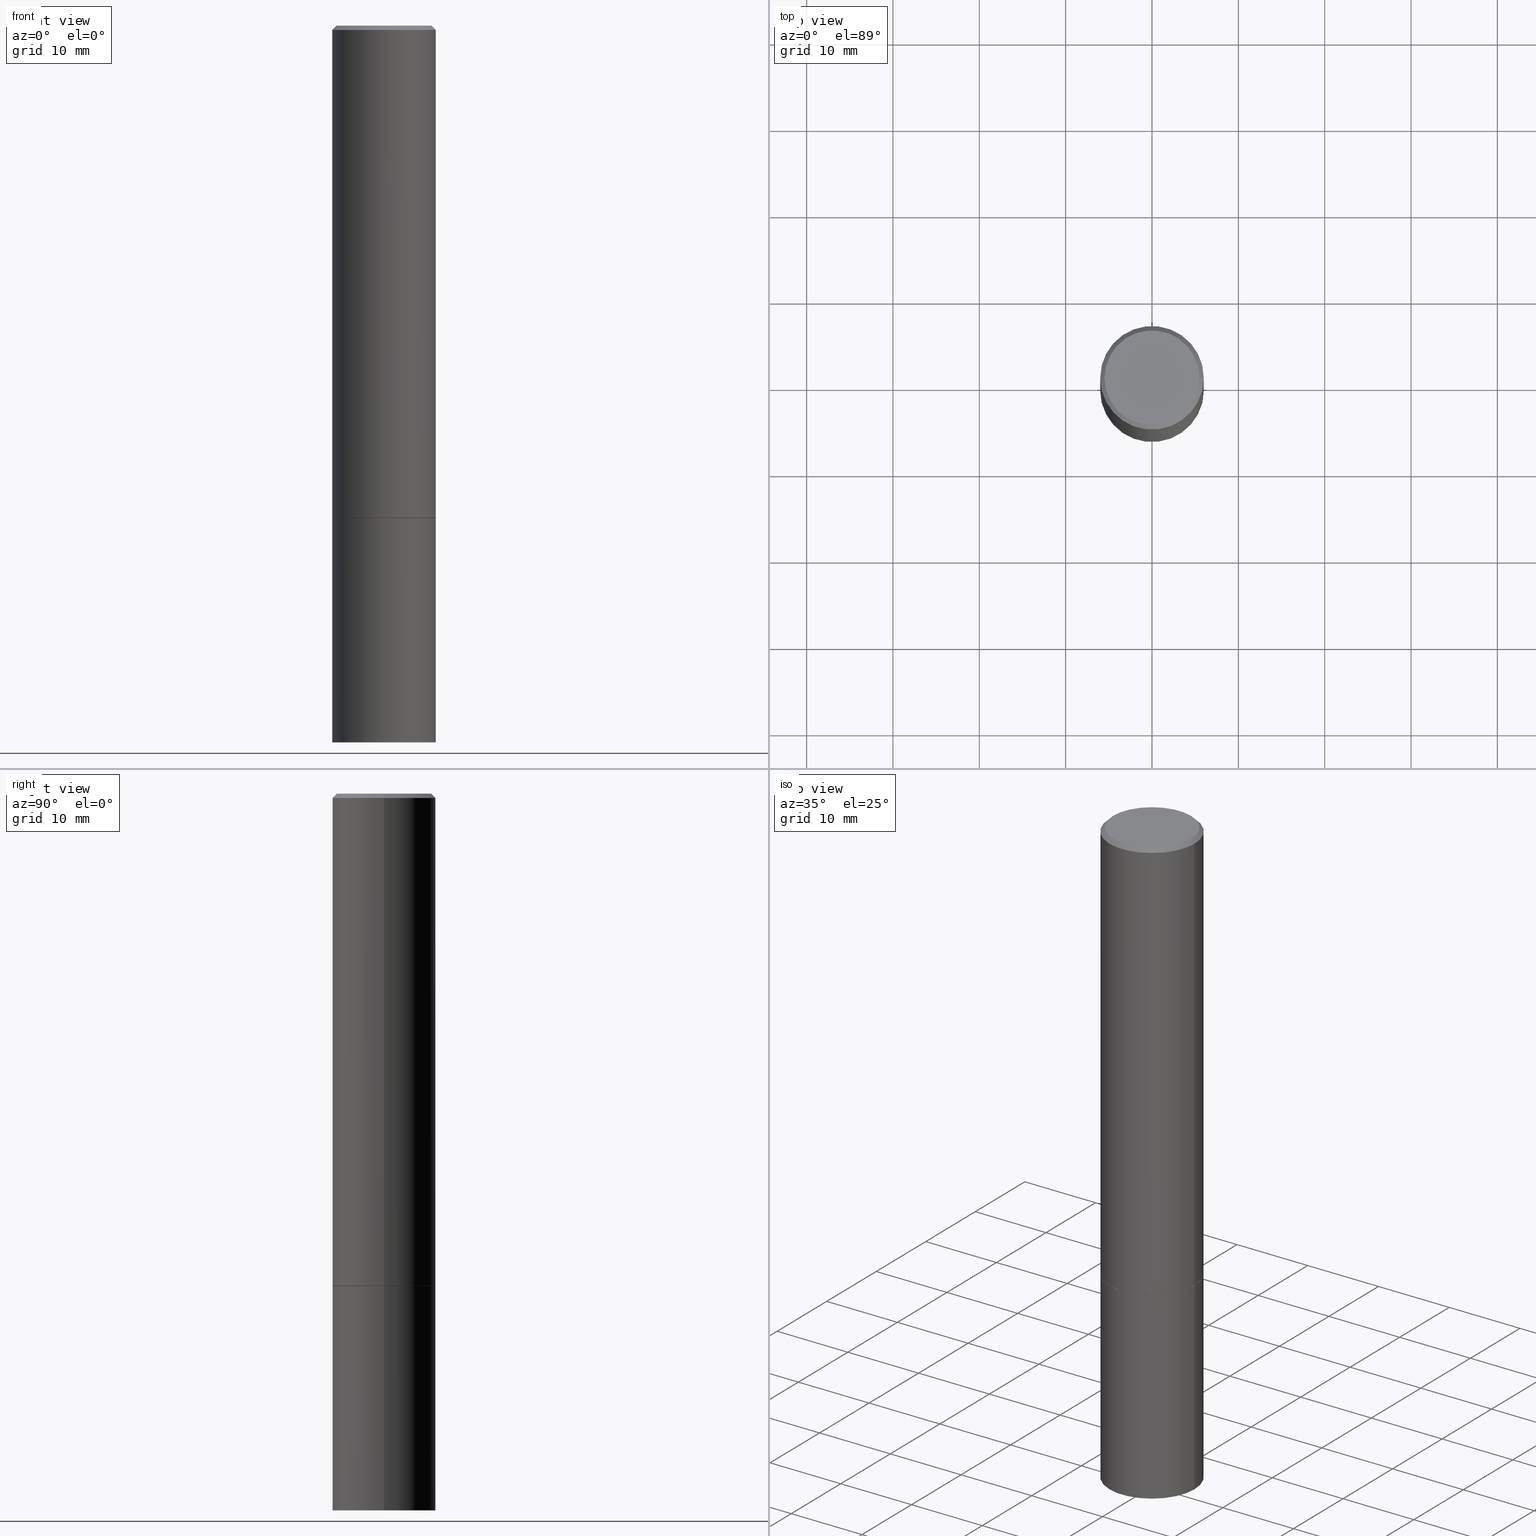
[diagram: canonical four-view strip — front | top / right | iso, engineering-drawing reading convention]
A machine part, canonical four-view strip (front | top / right | iso — engineering-drawing reading convention). The complete STEP part file that produces these views, byte-faithful:
ISO-10303-21;
HEADER;
FILE_DESCRIPTION (( 'STEP AP203' ),
    '1' );
FILE_NAME ('46623.STEP',
    '2024-02-28T11:01:52',
    ( '' ),
    ( '' ),
    'SwSTEP 2.0',
    'SolidWorks 2023',
    '' );
FILE_SCHEMA (( 'CONFIG_CONTROL_DESIGN' ));
ENDSEC;

DATA;
#1 = EDGE_CURVE ( 'NONE', #11, #229, #306, .T. ) ;
#2 = DIRECTION ( 'NONE',  ( 2.445468806185136597E-29, -3.491481338843145583E-15, -1.000000000000000000 ) ) ;
#3 = ORIENTED_EDGE ( 'NONE', *, *, #104, .T. ) ;
#4 = CC_DESIGN_APPROVAL ( #172, ( #170 ) ) ;
#5 = LINE ( 'NONE', #202, #313 ) ;
#6 = CARTESIAN_POINT ( 'NONE',  ( 5.485431079153880270E-29, -7.831741791159060910E-15, -2.243100000000000094 ) ) ;
#7 = DIRECTION ( 'NONE',  ( 0.7071067811865467956, -7.319954787623254468E-15, -0.7071067811865482389 ) ) ;
#8 = PERSON ( 'UNSPECIFIED', 'UNSPECIFIED', 'UNSPECIFIED', ('UNSPECIFIED'), ('UNSPECIFIED'), ('UNSPECIFIED') ) ;
#9 = ORIENTED_EDGE ( 'NONE', *, *, #1, .F. ) ;
#10 = EDGE_CURVE ( 'NONE', #66, #284, #54, .T. ) ;
#11 = VERTEX_POINT ( 'NONE', #192 ) ;
#12 = ORIENTED_EDGE ( 'NONE', *, *, #260, .T. ) ;
#13 = COORDINATED_UNIVERSAL_TIME_OFFSET ( 5, 0, .BEHIND. ) ;
#14 = ORIENTED_EDGE ( 'NONE', *, *, #1, .T. ) ;
#15 = AXIS2_PLACEMENT_3D ( 'NONE', #128, #245, #240 ) ;
#16 = LOCAL_TIME ( 6, 1, 52.00000000000000000, #119 ) ;
#17 = ORGANIZATION ( 'UNSPECIFIED', 'UNSPECIFIED', '' ) ;
#18 = DATE_TIME_ROLE ( 'classification_date' ) ;
#19 = DIRECTION ( 'NONE',  ( -2.445468806185136597E-29, 3.491481338843145583E-15, 1.000000000000000000 ) ) ;
#20 = AXIS2_PLACEMENT_3D ( 'NONE', #321, #90, #350 ) ;
#21 = EDGE_CURVE ( 'NONE', #198, #120, #329, .T. ) ;
#22 = EDGE_CURVE ( 'NONE', #198, #351, #141, .T. ) ;
#23 = CYLINDRICAL_SURFACE ( 'NONE', #291, 0.2361999999999999933 ) ;
#24 = CC_DESIGN_SECURITY_CLASSIFICATION ( #32, ( #170 ) ) ;
#25 = DIRECTION ( 'NONE',  ( -2.445468806185136597E-29, 3.491481338843145583E-15, 1.000000000000000000 ) ) ;
#26 = ORIENTED_EDGE ( 'NONE', *, *, #355, .T. ) ;
#27 = EDGE_CURVE ( 'NONE', #11, #116, #98, .T. ) ;
#28 = CARTESIAN_POINT ( 'NONE',  ( -1.043851414335219820E-46, 1.490343170380447200E-32, 4.268512490100411279E-18 ) ) ;
#29 = ORIENTED_EDGE ( 'NONE', *, *, #301, .F. ) ;
#30 = CARTESIAN_POINT ( 'NONE',  ( 4.890937612370288923E-31, -6.982962677686312563E-17, -0.02000000000000006287 ) ) ;
#31 = CARTESIAN_POINT ( 'NONE',  ( 5.487876547960064752E-29, -7.835233272497902340E-15, -2.244099999999999984 ) ) ;
#32 = SECURITY_CLASSIFICATION ( '', '', #210 ) ;
#33 = APPROVAL ( #204, 'UNSPECIFIED' ) ;
#34 = CYLINDRICAL_SURFACE ( 'NONE', #103, 0.2361999999999998545 ) ;
#35 = ORIENTED_EDGE ( 'NONE', *, *, #355, .F. ) ;
#36 = DIRECTION ( 'NONE',  ( -2.445468806185136597E-29, 3.491481338843145583E-15, 1.000000000000000000 ) ) ;
#37 = ORIENTED_EDGE ( 'NONE', *, *, #21, .T. ) ;
#38 = PERSON_AND_ORGANIZATION_ROLE ( 'creator' ) ;
#39 = EDGE_LOOP ( 'NONE', ( #171, #280, #220, #59 ) ) ;
#40 = CLOSED_SHELL ( 'NONE', ( #48, #363, #310, #156 ) ) ;
#41 = PERSON_AND_ORGANIZATION_ROLE ( 'creator' ) ;
#42 = CARTESIAN_POINT ( 'NONE',  ( 1.649375784469575806E-15, 0.2361999999999885858, -3.267700000000001381 ) ) ;
#43 = CARTESIAN_POINT ( 'NONE',  ( 7.991058417971171713E-29, -1.140911357093774644E-14, -3.267700000000000049 ) ) ;
#44 = AXIS2_PLACEMENT_3D ( 'NONE', #30, #2, #50 ) ;
#45 = CC_DESIGN_PERSON_AND_ORGANIZATION_ASSIGNMENT ( #294, #238, ( #32 ) ) ;
#46 = CALENDAR_DATE ( 2024, 28, 2 ) ;
#47 = DIRECTION ( 'NONE',  ( -1.000000000000000000, 6.982962677686266711E-15, 0.000000000000000000 ) ) ;
#48 = ADVANCED_FACE ( 'NONE', ( #99 ), #263, .T. ) ;
#49 = CARTESIAN_POINT ( 'NONE',  ( -0.2362000000000000210, -2.272483767102602555E-15, -2.243100000000000094 ) ) ;
#50 = DIRECTION ( 'NONE',  ( -1.000000000000000000, 6.982962677686266711E-15, 0.000000000000000000 ) ) ;
#51 = DIRECTION ( 'NONE',  ( 1.000000000000000000, -6.982962677686265133E-15, 0.000000000000000000 ) ) ;
#52 = DIRECTION ( 'NONE',  ( -2.445468806185136597E-29, 3.491481338843145583E-15, 1.000000000000000000 ) ) ;
#53 = ORIENTED_EDGE ( 'NONE', *, *, #227, .T. ) ;
#54 = CIRCLE ( 'NONE', #197, 0.2351999999999999924 ) ;
#55 = DIRECTION ( 'NONE',  ( -0.7071067811865467956, 2.468850131082249172E-15, -0.7071067811865482389 ) ) ;
#56 = EDGE_LOOP ( 'NONE', ( #3, #286, #94, #200 ) ) ;
#57 = PRODUCT_RELATED_PRODUCT_CATEGORY ( 'detail', '', ( #184 ) ) ;
#58 = FACE_OUTER_BOUND ( 'NONE', #139, .T. ) ;
#59 = ORIENTED_EDGE ( 'NONE', *, *, #327, .F. ) ;
#60 = CARTESIAN_POINT ( 'NONE',  ( -0.2361999999999999933, -7.943871479852467996E-15, -2.244100000000000428 ) ) ;
#61 = DIRECTION ( 'NONE',  ( -2.445468806185136877E-29, 3.491481338843145188E-15, 1.000000000000000000 ) ) ;
#62 = AXIS2_PLACEMENT_3D ( 'NONE', #242, #361, #297 ) ;
#63 = DATE_AND_TIME ( #290, #346 ) ;
#64 = DIRECTION ( 'NONE',  ( -1.000000000000000000, 6.982962677686265922E-15, -4.876176775795935793E-29 ) ) ;
#65 = DIRECTION ( 'NONE',  ( 1.000000000000000000, -6.982962677686266711E-15, 0.000000000000000000 ) ) ;
#66 = VERTEX_POINT ( 'NONE', #318 ) ;
#67 = DATE_AND_TIME ( #262, #16 ) ;
#68 = CARTESIAN_POINT ( 'NONE',  ( 4.890937612370288923E-31, -6.982962677686312563E-17, -0.02000000000000006287 ) ) ;
#69 = EDGE_CURVE ( 'NONE', #116, #11, #264, .T. ) ;
#70 = APPLICATION_PROTOCOL_DEFINITION ( 'international standard', 'config_control_design', 1994, #163 ) ;
#71 = FACE_OUTER_BOUND ( 'NONE', #39, .T. ) ;
#72 = PRODUCT_DEFINITION ( 'UNKNOWN', '', #170, #261 ) ;
#73 = AXIS2_PLACEMENT_3D ( 'NONE', #314, #79, #86 ) ;
#74 = CYLINDRICAL_SURFACE ( 'NONE', #15, 0.2361999999999998545 ) ;
#75 = CIRCLE ( 'NONE', #62, 0.2161999999999996702 ) ;
#76 = CC_DESIGN_DATE_AND_TIME_ASSIGNMENT ( #269, #18, ( #32 ) ) ;
#77 = DIRECTION ( 'NONE',  ( 2.438088387897960049E-29, -3.491481338843145188E-15, -1.000000000000000000 ) ) ;
#78 = DIRECTION ( 'NONE',  ( 1.000000000000000000, -6.982962677686268288E-15, 0.000000000000000000 ) ) ;
#79 = DIRECTION ( 'NONE',  ( -2.438088387897960049E-29, 3.491481338843145188E-15, 1.000000000000000000 ) ) ;
#80 = VERTEX_POINT ( 'NONE', #259 ) ;
#81 = DIRECTION ( 'NONE',  ( -0.7071067811866199593, 7.493145998870616062E-15, 0.7071067811864750752 ) ) ;
#82 = CARTESIAN_POINT ( 'NONE',  ( -0.2361999999999999933, 1.678301941865356591E-15, -1.161852468318208757E-29 ) ) ;
#83 = FACE_OUTER_BOUND ( 'NONE', #249, .T. ) ;
#84 = CARTESIAN_POINT ( 'NONE',  ( 7.991058417971171713E-29, -1.140911357093774644E-14, -3.267700000000000049 ) ) ;
#85 = EDGE_CURVE ( 'NONE', #351, #80, #317, .T. ) ;
#86 = DIRECTION ( 'NONE',  ( 1.000000000000000000, -6.982962677686265922E-15, 4.876176775795935793E-29 ) ) ;
#87 = ORIENTED_EDGE ( 'NONE', *, *, #27, .T. ) ;
#88 = MANIFOLD_SOLID_BREP ( 'Body-Move/Copy2[2]', #225 ) ;
#89 = APPLICATION_PROTOCOL_DEFINITION ( 'international standard', 'config_control_design', 1994, #136 ) ;
#90 = DIRECTION ( 'NONE',  ( -2.445468806185136597E-29, 3.491481338843145583E-15, 1.000000000000000000 ) ) ;
#91 = AXIS2_PLACEMENT_3D ( 'NONE', #43, #19, #151 ) ;
#92 = EDGE_CURVE ( 'NONE', #231, #229, #175, .T. ) ;
#93 = CARTESIAN_POINT ( 'NONE',  ( 0.000000000000000000, 0.000000000000000000, 0.000000000000000000 ) ) ;
#94 = ORIENTED_EDGE ( 'NONE', *, *, #21, .F. ) ;
#95 = CARTESIAN_POINT ( 'NONE',  ( 0.000000000000000000, 0.000000000000000000, 0.000000000000000000 ) ) ;
#96 = DIRECTION ( 'NONE',  ( -2.445468806185136597E-29, 3.491481338843145583E-15, 1.000000000000000000 ) ) ;
#97 = EDGE_CURVE ( 'NONE', #80, #351, #142, .T. ) ;
#98 = CIRCLE ( 'NONE', #274, 0.2361999999999999933 ) ;
#99 = FACE_OUTER_BOUND ( 'NONE', #167, .T. ) ;
#100 = CARTESIAN_POINT ( 'NONE',  ( 4.890937612370288923E-31, -6.982962677686312563E-17, -0.02000000000000006287 ) ) ;
#101 = ADVANCED_FACE ( 'NONE', ( #71 ), #293, .T. ) ;
#102 = DIRECTION ( 'NONE',  ( 2.445468806185136597E-29, -3.491481338843145583E-15, -1.000000000000000000 ) ) ;
#103 = AXIS2_PLACEMENT_3D ( 'NONE', #164, #277, #108 ) ;
#104 = EDGE_CURVE ( 'NONE', #284, #66, #148, .T. ) ;
#105 = DIRECTION ( 'NONE',  ( -1.000000000000000000, 6.982962677686265922E-15, -4.876176775795935793E-29 ) ) ;
#106 = DIRECTION ( 'NONE',  ( -2.445468806185136877E-29, 3.491481338843145188E-15, 1.000000000000000000 ) ) ;
#107 = EDGE_LOOP ( 'NONE', ( #251, #223 ) ) ;
#108 = DIRECTION ( 'NONE',  ( 1.000000000000000000, -6.982962677686266711E-15, 4.876176775795935793E-29 ) ) ;
#109 = EDGE_LOOP ( 'NONE', ( #253, #337 ) ) ;
#110 = VECTOR ( 'NONE', #224, 39.37007874015748143 ) ;
#111 = AXIS2_PLACEMENT_3D ( 'NONE', #222, #166, #105 ) ;
#112 = CARTESIAN_POINT ( 'NONE',  ( 0.2361999999999999933, -9.481117575628557435E-15, -2.243100000000000094 ) ) ;
#113 = EDGE_CURVE ( 'NONE', #292, #319, #75, .T. ) ;
#114 = DIRECTION ( 'NONE',  ( 1.000000000000000000, -6.982962677686269077E-15, 0.000000000000000000 ) ) ;
#115 = FACE_OUTER_BOUND ( 'NONE', #56, .T. ) ;
#116 = VERTEX_POINT ( 'NONE', #362 ) ;
#117 = DIRECTION ( 'NONE',  ( 2.438088387897960049E-29, -3.491481338843145188E-15, -1.000000000000000000 ) ) ;
#118 = ORIENTED_EDGE ( 'NONE', *, *, #22, .T. ) ;
#119 = COORDINATED_UNIVERSAL_TIME_OFFSET ( 5, 0, .BEHIND. ) ;
#120 = VERTEX_POINT ( 'NONE', #49 ) ;
#121 = CALENDAR_DATE ( 2024, 28, 2 ) ;
#122 = LENGTH_MEASURE_WITH_UNIT ( LENGTH_MEASURE( 0.02539999999999999897 ), #357 );
#123 = APPROVAL_PERSON_ORGANIZATION ( #212, #347, #213 ) ;
#124 = APPROVAL_DATE_TIME ( #256, #172 ) ;
#125 = DIRECTION ( 'NONE',  ( 1.000000000000000000, -6.982962677686266711E-15, 0.000000000000000000 ) ) ;
#126 = CARTESIAN_POINT ( 'NONE',  ( 5.487876547960064752E-29, -7.835233272497902340E-15, -2.244099999999999984 ) ) ;
#127 = AXIS2_PLACEMENT_3D ( 'NONE', #126, #330, #214 ) ;
#128 = CARTESIAN_POINT ( 'NONE',  ( 0.000000000000000000, 0.000000000000000000, 0.000000000000000000 ) ) ;
#129 = ADVANCED_FACE ( 'NONE', ( #154 ), #268, .T. ) ;
#130 = DIRECTION ( 'NONE',  ( 1.000000000000000000, -6.982962677686268288E-15, 0.000000000000000000 ) ) ;
#131 = AXIS2_PLACEMENT_3D ( 'NONE', #28, #279, #228 ) ;
#132 = PLANE ( 'NONE',  #160 ) ;
#133 = EDGE_LOOP ( 'NONE', ( #37, #165, #180, #135 ) ) ;
#134 = LINE ( 'NONE', #339, #328 ) ;
#135 = ORIENTED_EDGE ( 'NONE', *, *, #22, .F. ) ;
#136 = APPLICATION_CONTEXT ( 'configuration controlled 3d designs of mechanical parts and assemblies' ) ;
#137 = DIRECTION ( 'NONE',  ( -2.445468806185136597E-29, 3.491481338843145583E-15, 1.000000000000000000 ) ) ;
#138 = VECTOR ( 'NONE', #7, 39.37007874015748143 ) ;
#139 = EDGE_LOOP ( 'NONE', ( #195, #203, #118, #309 ) ) ;
#140 = LINE ( 'NONE', #254, #138 ) ;
#141 = LINE ( 'NONE', #226, #157 ) ;
#142 = CIRCLE ( 'NONE', #307, 0.2361999999999996880 ) ;
#143 = PERSON_AND_ORGANIZATION ( #8, #17 ) ;
#144 = EDGE_LOOP ( 'NONE', ( #345, #53 ) ) ;
#145 = EDGE_LOOP ( 'NONE', ( #162, #26, #276, #344 ) ) ;
#146 = APPROVAL_ROLE ( '' ) ;
#147 = DIRECTION ( 'NONE',  ( 0.000000000000000000, 0.000000000000000000, 1.000000000000000000 ) ) ;
#148 = CIRCLE ( 'NONE', #190, 0.2351999999999999924 ) ;
#149 = ADVANCED_FACE ( 'NONE', ( #155 ), #74, .T. ) ;
#150 = CALENDAR_DATE ( 2024, 28, 2 ) ;
#151 = DIRECTION ( 'NONE',  ( 1.000000000000000000, -6.982962677686265133E-15, 0.000000000000000000 ) ) ;
#152 = LOCAL_TIME ( 6, 1, 52.00000000000000000, #273 ) ;
#153 = DIRECTION ( 'NONE',  ( 1.000000000000000000, -6.982962677686266711E-15, 4.876176775795936353E-29 ) ) ;
#154 = FACE_OUTER_BOUND ( 'NONE', #145, .T. ) ;
#155 = FACE_OUTER_BOUND ( 'NONE', #133, .T. ) ;
#156 = ADVANCED_FACE ( 'NONE', ( #158 ), #23, .T. ) ;
#157 = VECTOR ( 'NONE', #342, 39.37007874015748143 ) ;
#158 = FACE_OUTER_BOUND ( 'NONE', #257, .T. ) ;
#159 = CARTESIAN_POINT ( 'NONE',  ( 5.487876547960064752E-29, -7.835233272497902340E-15, -2.244099999999999984 ) ) ;
#160 = AXIS2_PLACEMENT_3D ( 'NONE', #42, #117, #64 ) ;
#161 = DIRECTION ( 'NONE',  ( 1.000000000000000000, -6.982962677686269077E-15, 0.000000000000000000 ) ) ;
#162 = ORIENTED_EDGE ( 'NONE', *, *, #227, .F. ) ;
#163 = APPLICATION_CONTEXT ( 'configuration controlled 3d designs of mechanical parts and assemblies' ) ;
#164 = CARTESIAN_POINT ( 'NONE',  ( 0.000000000000000000, 0.000000000000000000, 0.000000000000000000 ) ) ;
#165 = ORIENTED_EDGE ( 'NONE', *, *, #182, .T. ) ;
#166 = DIRECTION ( 'NONE',  ( 2.438088387897960049E-29, -3.491481338843145188E-15, -1.000000000000000000 ) ) ;
#167 = EDGE_LOOP ( 'NONE', ( #340, #14, #266, #278 ) ) ;
#168 = CC_DESIGN_APPROVAL ( #33, ( #72 ) ) ;
#169 = LINE ( 'NONE', #335, #189 ) ;
#170 = PRODUCT_DEFINITION_FORMATION_WITH_SPECIFIED_SOURCE ( 'ANY', '', #184, .NOT_KNOWN. ) ;
#171 = ORIENTED_EDGE ( 'NONE', *, *, #244, .F. ) ;
#172 = APPROVAL ( #183, 'UNSPECIFIED' ) ;
#173 = CARTESIAN_POINT ( 'NONE',  ( 1.649375784469550759E-15, 0.2361999999999921662, -2.244100000000000872 ) ) ;
#174 = DIRECTION ( 'NONE',  ( -2.445468806185136597E-29, 3.491481338843145583E-15, 1.000000000000000000 ) ) ;
#175 = CIRCLE ( 'NONE', #20, 0.2361999999999999933 ) ;
#176 = APPROVAL_DATE_TIME ( #63, #33 ) ;
#177 = AXIS2_PLACEMENT_3D ( 'NONE', #100, #102, #47 ) ;
#178 = PERSON_AND_ORGANIZATION ( #8, #17 ) ;
#179 = CIRCLE ( 'NONE', #298, 0.2361999999999999933 ) ;
#180 = ORIENTED_EDGE ( 'NONE', *, *, #85, .F. ) ;
#181 = DATE_TIME_ROLE ( 'creation_date' ) ;
#182 = EDGE_CURVE ( 'NONE', #120, #80, #169, .T. ) ;
#183 = APPROVAL_STATUS ( 'not_yet_approved' ) ;
#184 = PRODUCT ( '46623', '46623', '', ( #287 ) ) ;
#185 = LOCAL_TIME ( 6, 1, 52.00000000000000000, #13 ) ;
#186 = DIMENSIONAL_EXPONENTS ( 1.000000000000000000, 0.000000000000000000, 0.000000000000000000, 0.000000000000000000, 0.000000000000000000, 0.000000000000000000, 0.000000000000000000 ) ;
#187 = ADVANCED_BREP_SHAPE_REPRESENTATION ( '46623', ( #211, #88, #221 ), #360 ) ;
#188 = PRODUCT_DEFINITION_SHAPE ( 'NONE', 'NONE',  #72 ) ;
#189 = VECTOR ( 'NONE', #248, 39.37007874015748143 ) ;
#190 = AXIS2_PLACEMENT_3D ( 'NONE', #159, #331, #299 ) ;
#191 = DIRECTION ( 'NONE',  ( -1.000000000000000000, 6.982962677686265922E-15, -4.876176775795935793E-29 ) ) ;
#192 = CARTESIAN_POINT ( 'NONE',  ( -0.2361999999999999933, -7.943871479852467996E-15, -3.267700000000000049 ) ) ;
#193 = CARTESIAN_POINT ( 'NONE',  ( 0.2361999999999999933, -1.649375784469496131E-15, 1.151752954443000088E-29 ) ) ;
#194 = EDGE_CURVE ( 'NONE', #292, #80, #5, .T. ) ;
#195 = ORIENTED_EDGE ( 'NONE', *, *, #182, .F. ) ;
#196 = CARTESIAN_POINT ( 'NONE',  ( 5.485431079153880270E-29, -7.831741791159060910E-15, -2.243100000000000094 ) ) ;
#197 = AXIS2_PLACEMENT_3D ( 'NONE', #31, #174, #78 ) ;
#198 = VERTEX_POINT ( 'NONE', #112 ) ;
#199 = PLANE ( 'NONE',  #73 ) ;
#200 = ORIENTED_EDGE ( 'NONE', *, *, #201, .F. ) ;
#201 = EDGE_CURVE ( 'NONE', #284, #198, #250, .T. ) ;
#202 = CARTESIAN_POINT ( 'NONE',  ( -0.2361999999999996880, 1.579546157692630860E-15, -0.02000000000000006287 ) ) ;
#203 = ORIENTED_EDGE ( 'NONE', *, *, #327, .T. ) ;
#204 = APPROVAL_STATUS ( 'not_yet_approved' ) ;
#205 = DIRECTION ( 'NONE',  ( 1.000000000000000000, 0.000000000000000000, 0.000000000000000000 ) ) ;
#206 = DIRECTION ( 'NONE',  ( -2.445468806185136597E-29, 3.491481338843145583E-15, 1.000000000000000000 ) ) ;
#207 = CARTESIAN_POINT ( 'NONE',  ( 4.890937612370288923E-31, -6.982962677686312563E-17, -0.02000000000000006287 ) ) ;
#208 = AXIS2_PLACEMENT_3D ( 'NONE', #173, #77, #191 ) ;
#209 = ADVANCED_FACE ( 'NONE', ( #303 ), #343, .F. ) ;
#210 = SECURITY_CLASSIFICATION_LEVEL ( 'unclassified' ) ;
#211 = MANIFOLD_SOLID_BREP ( 'Body-Move/Copy2[1]', #40 ) ;
#212 = PERSON_AND_ORGANIZATION ( #8, #17 ) ;
#213 = APPROVAL_ROLE ( '' ) ;
#214 = DIRECTION ( 'NONE',  ( 1.000000000000000000, -6.982962677686268288E-15, 0.000000000000000000 ) ) ;
#215 = CC_DESIGN_PERSON_AND_ORGANIZATION_ASSIGNMENT ( #235, #41, ( #170 ) ) ;
#216 = CC_DESIGN_APPROVAL ( #347, ( #32 ) ) ;
#217 = CARTESIAN_POINT ( 'NONE',  ( 0.000000000000000000, 0.000000000000000000, 0.000000000000000000 ) ) ;
#218 = CARTESIAN_POINT ( 'NONE',  ( 0.2361999999999996880, -1.690279253850496602E-15, -0.02000000000000006287 ) ) ;
#219 = CARTESIAN_POINT ( 'NONE',  ( 0.2351999999999999924, -9.477626094289712851E-15, -2.244099999999999984 ) ) ;
#220 = ORIENTED_EDGE ( 'NONE', *, *, #201, .T. ) ;
#221 = AXIS2_PLACEMENT_3D ( 'NONE', #95, #147, #205 ) ;
#222 = CARTESIAN_POINT ( 'NONE',  ( 1.509716530915768351E-15, 0.2161999999999996702, -7.527240092128367232E-16 ) ) ;
#223 = ORIENTED_EDGE ( 'NONE', *, *, #10, .F. ) ;
#224 = DIRECTION ( 'NONE',  ( 0.7071067811866199593, -2.468850131083015945E-15, 0.7071067811864750752 ) ) ;
#225 = CLOSED_SHELL ( 'NONE', ( #359, #149, #129, #288, #332, #101, #296, #209 ) ) ;
#226 = CARTESIAN_POINT ( 'NONE',  ( 0.2361999999999998545, -1.649375784469495145E-15, 1.151752954442999387E-29 ) ) ;
#227 = EDGE_CURVE ( 'NONE', #319, #292, #326, .T. ) ;
#228 = DIRECTION ( 'NONE',  ( 1.000000000000000000, -6.982962677686266711E-15, 4.876217060660162962E-29 ) ) ;
#229 = VERTEX_POINT ( 'NONE', #60 ) ;
#230 =( NAMED_UNIT ( * ) SI_UNIT ( $, .STERADIAN. ) SOLID_ANGLE_UNIT ( ) );
#231 = VERTEX_POINT ( 'NONE', #336 ) ;
#232 = APPROVAL_ROLE ( '' ) ;
#233 = DIRECTION ( 'NONE',  ( -2.445468806185136597E-29, 3.491481338843145583E-15, 1.000000000000000000 ) ) ;
#234 = EDGE_LOOP ( 'NONE', ( #255, #258 ) ) ;
#235 = PERSON_AND_ORGANIZATION ( #8, #17 ) ;
#236 = PERSON_AND_ORGANIZATION ( #8, #17 ) ;
#237 = CONICAL_SURFACE ( 'NONE', #44, 0.2361999999999996880, 0.7853981633974472798 ) ;
#238 = PERSON_AND_ORGANIZATION_ROLE ( 'classification_officer' ) ;
#239 = CC_DESIGN_DATE_AND_TIME_ASSIGNMENT ( #67, #181, ( #72 ) ) ;
#240 = DIRECTION ( 'NONE',  ( 1.000000000000000000, -6.982962677686266711E-15, 4.876176775795935793E-29 ) ) ;
#241 = APPROVAL_STATUS ( 'not_yet_approved' ) ;
#242 = CARTESIAN_POINT ( 'NONE',  ( -1.043851414335219820E-46, 1.490343170380447200E-32, 4.268512490100411279E-18 ) ) ;
#243 = AXIS2_PLACEMENT_3D ( 'NONE', #207, #233, #125 ) ;
#244 = EDGE_CURVE ( 'NONE', #66, #120, #134, .T. ) ;
#245 = DIRECTION ( 'NONE',  ( -2.445468806185136597E-29, 3.491481338843145583E-15, 1.000000000000000000 ) ) ;
#246 = AXIS2_PLACEMENT_3D ( 'NONE', #285, #25, #130 ) ;
#247 = CARTESIAN_POINT ( 'NONE',  ( 5.487876547960065873E-29, -7.835233272497903917E-15, -2.244100000000000428 ) ) ;
#248 = DIRECTION ( 'NONE',  ( -2.445468806185136877E-29, 3.491481338843145188E-15, 1.000000000000000000 ) ) ;
#249 = EDGE_LOOP ( 'NONE', ( #35, #366, #315, #312 ) ) ;
#250 = LINE ( 'NONE', #365, #110 ) ;
#251 = ORIENTED_EDGE ( 'NONE', *, *, #104, .F. ) ;
#252 = DIRECTION ( 'NONE',  ( 1.000000000000000000, -6.982962677686269077E-15, 0.000000000000000000 ) ) ;
#253 = ORIENTED_EDGE ( 'NONE', *, *, #92, .T. ) ;
#254 = CARTESIAN_POINT ( 'NONE',  ( 0.2361999999999996880, -1.690279253850496602E-15, -0.02000000000000006287 ) ) ;
#255 = ORIENTED_EDGE ( 'NONE', *, *, #69, .F. ) ;
#256 = DATE_AND_TIME ( #121, #185 ) ;
#257 = EDGE_LOOP ( 'NONE', ( #9, #87, #12, #29 ) ) ;
#258 = ORIENTED_EDGE ( 'NONE', *, *, #27, .F. ) ;
#259 = CARTESIAN_POINT ( 'NONE',  ( -0.2361999999999996880, 1.579546157692630860E-15, -0.02000000000000006287 ) ) ;
#260 = EDGE_CURVE ( 'NONE', #116, #231, #283, .T. ) ;
#261 = DESIGN_CONTEXT ( 'detailed design', #136, 'design' ) ;
#262 = CALENDAR_DATE ( 2024, 28, 2 ) ;
#263 = CYLINDRICAL_SURFACE ( 'NONE', #300, 0.2361999999999999933 ) ;
#264 = CIRCLE ( 'NONE', #91, 0.2361999999999999933 ) ;
#265 = VECTOR ( 'NONE', #106, 39.37007874015748143 ) ;
#266 = ORIENTED_EDGE ( 'NONE', *, *, #92, .F. ) ;
#267 = PERSON_AND_ORGANIZATION ( #8, #17 ) ;
#268 = CONICAL_SURFACE ( 'NONE', #177, 0.2361999999999996880, 0.7853981633974472798 ) ;
#269 = DATE_AND_TIME ( #150, #270 ) ;
#270 = LOCAL_TIME ( 6, 1, 52.00000000000000000, #322 ) ;
#271 = CC_DESIGN_PERSON_AND_ORGANIZATION_ASSIGNMENT ( #267, #38, ( #72 ) ) ;
#272 = VECTOR ( 'NONE', #61, 39.37007874015748143 ) ;
#273 = COORDINATED_UNIVERSAL_TIME_OFFSET ( 5, 0, .BEHIND. ) ;
#274 = AXIS2_PLACEMENT_3D ( 'NONE', #84, #304, #51 ) ;
#275 = PLANE ( 'NONE',  #208 ) ;
#276 = ORIENTED_EDGE ( 'NONE', *, *, #85, .T. ) ;
#277 = DIRECTION ( 'NONE',  ( -2.445468806185136597E-29, 3.491481338843145583E-15, 1.000000000000000000 ) ) ;
#278 = ORIENTED_EDGE ( 'NONE', *, *, #260, .F. ) ;
#279 = DIRECTION ( 'NONE',  ( -2.445468806185136597E-29, 3.491481338843145583E-15, 1.000000000000000000 ) ) ;
#280 = ORIENTED_EDGE ( 'NONE', *, *, #10, .T. ) ;
#281 = AXIS2_PLACEMENT_3D ( 'NONE', #196, #52, #161 ) ;
#282 = CC_DESIGN_PERSON_AND_ORGANIZATION_ASSIGNMENT ( #320, #324, ( #184 ) ) ;
#283 = LINE ( 'NONE', #193, #265 ) ;
#284 = VERTEX_POINT ( 'NONE', #219 ) ;
#285 = CARTESIAN_POINT ( 'NONE',  ( 5.487876547960064752E-29, -7.835233272497902340E-15, -2.244099999999999984 ) ) ;
#286 = ORIENTED_EDGE ( 'NONE', *, *, #244, .T. ) ;
#287 = MECHANICAL_CONTEXT ( 'NONE', #163, 'mechanical' ) ;
#288 = ADVANCED_FACE ( 'NONE', ( #83 ), #237, .T. ) ;
#289 = CONICAL_SURFACE ( 'NONE', #246, 0.2351999999999999924, 0.7853981633975507526 ) ;
#290 = CALENDAR_DATE ( 2024, 28, 2 ) ;
#291 = AXIS2_PLACEMENT_3D ( 'NONE', #217, #334, #302 ) ;
#292 = VERTEX_POINT ( 'NONE', #341 ) ;
#293 = CONICAL_SURFACE ( 'NONE', #127, 0.2351999999999999924, 0.7853981633975507526 ) ;
#294 = PERSON_AND_ORGANIZATION ( #8, #17 ) ;
#295 = APPROVAL_PERSON_ORGANIZATION ( #143, #172, #232 ) ;
#296 = ADVANCED_FACE ( 'NONE', ( #308 ), #199, .F. ) ;
#297 = DIRECTION ( 'NONE',  ( 1.000000000000000000, -6.982962677686266711E-15, 4.876217060660162962E-29 ) ) ;
#298 = AXIS2_PLACEMENT_3D ( 'NONE', #247, #137, #252 ) ;
#299 = DIRECTION ( 'NONE',  ( 1.000000000000000000, -6.982962677686268288E-15, 0.000000000000000000 ) ) ;
#300 = AXIS2_PLACEMENT_3D ( 'NONE', #93, #96, #153 ) ;
#301 = EDGE_CURVE ( 'NONE', #229, #231, #179, .T. ) ;
#302 = DIRECTION ( 'NONE',  ( 1.000000000000000000, -6.982962677686266711E-15, 4.876176775795936353E-29 ) ) ;
#303 = FACE_OUTER_BOUND ( 'NONE', #144, .T. ) ;
#304 = DIRECTION ( 'NONE',  ( -2.445468806185136597E-29, 3.491481338843145583E-15, 1.000000000000000000 ) ) ;
#305 = CARTESIAN_POINT ( 'NONE',  ( 0.2161999999999996702, -1.586759460484349818E-15, 4.268512490111238857E-18 ) ) ;
#306 = LINE ( 'NONE', #82, #272 ) ;
#307 = AXIS2_PLACEMENT_3D ( 'NONE', #68, #206, #65 ) ;
#308 = FACE_OUTER_BOUND ( 'NONE', #107, .T. ) ;
#309 = ORIENTED_EDGE ( 'NONE', *, *, #97, .F. ) ;
#310 = ADVANCED_FACE ( 'NONE', ( #311 ), #275, .F. ) ;
#311 = FACE_OUTER_BOUND ( 'NONE', #109, .T. ) ;
#312 = ORIENTED_EDGE ( 'NONE', *, *, #97, .T. ) ;
#313 = VECTOR ( 'NONE', #55, 39.37007874015748143 ) ;
#314 = CARTESIAN_POINT ( 'NONE',  ( 5.487876547960065873E-29, -7.835233272497903917E-15, -2.244100000000000428 ) ) ;
#315 = ORIENTED_EDGE ( 'NONE', *, *, #194, .T. ) ;
#316 = COORDINATED_UNIVERSAL_TIME_OFFSET ( 5, 0, .BEHIND. ) ;
#317 = CIRCLE ( 'NONE', #243, 0.2361999999999996880 ) ;
#318 = CARTESIAN_POINT ( 'NONE',  ( -0.2351999999999999924, -6.158738303641924552E-15, -2.244099999999999984 ) ) ;
#319 = VERTEX_POINT ( 'NONE', #305 ) ;
#320 = PERSON_AND_ORGANIZATION ( #8, #17 ) ;
#321 = CARTESIAN_POINT ( 'NONE',  ( 5.487876547960065873E-29, -7.835233272497903917E-15, -2.244100000000000428 ) ) ;
#322 = COORDINATED_UNIVERSAL_TIME_OFFSET ( 5, 0, .BEHIND. ) ;
#323 = CC_DESIGN_PERSON_AND_ORGANIZATION_ASSIGNMENT ( #236, #354, ( #170 ) ) ;
#324 = PERSON_AND_ORGANIZATION_ROLE ( 'design_owner' ) ;
#325 = SHAPE_DEFINITION_REPRESENTATION ( #188, #187 ) ;
#326 = CIRCLE ( 'NONE', #131, 0.2161999999999996702 ) ;
#327 = EDGE_CURVE ( 'NONE', #120, #198, #338, .T. ) ;
#328 = VECTOR ( 'NONE', #81, 39.37007874015748143 ) ;
#329 = CIRCLE ( 'NONE', #348, 0.2361999999999999933 ) ;
#330 = DIRECTION ( 'NONE',  ( -2.445468806185136597E-29, 3.491481338843145583E-15, 1.000000000000000000 ) ) ;
#331 = DIRECTION ( 'NONE',  ( -2.445468806185136597E-29, 3.491481338843145583E-15, 1.000000000000000000 ) ) ;
#332 = ADVANCED_FACE ( 'NONE', ( #58 ), #34, .T. ) ;
#333 = APPROVAL_DATE_TIME ( #358, #347 ) ;
#334 = DIRECTION ( 'NONE',  ( -2.445468806185136597E-29, 3.491481338843145583E-15, 1.000000000000000000 ) ) ;
#335 = CARTESIAN_POINT ( 'NONE',  ( -0.2361999999999998545, 1.678301941865355605E-15, -1.161852468318208056E-29 ) ) ;
#336 = CARTESIAN_POINT ( 'NONE',  ( 0.2361999999999999933, -9.484609056967400443E-15, -2.244100000000000428 ) ) ;
#337 = ORIENTED_EDGE ( 'NONE', *, *, #301, .T. ) ;
#338 = CIRCLE ( 'NONE', #281, 0.2361999999999999933 ) ;
#339 = CARTESIAN_POINT ( 'NONE',  ( -0.2351999999999999924, -6.164036757990146954E-15, -2.244099999999999984 ) ) ;
#340 = ORIENTED_EDGE ( 'NONE', *, *, #69, .T. ) ;
#341 = CARTESIAN_POINT ( 'NONE',  ( -0.2161999999999996702, 1.544631344304199803E-15, 4.268512490089730842E-18 ) ) ;
#342 = DIRECTION ( 'NONE',  ( -2.445468806185136877E-29, 3.491481338843145188E-15, 1.000000000000000000 ) ) ;
#343 = PLANE ( 'NONE',  #111 ) ;
#344 = ORIENTED_EDGE ( 'NONE', *, *, #194, .F. ) ;
#345 = ORIENTED_EDGE ( 'NONE', *, *, #113, .T. ) ;
#346 = LOCAL_TIME ( 6, 1, 52.00000000000000000, #316 ) ;
#347 = APPROVAL ( #241, 'UNSPECIFIED' ) ;
#348 = AXIS2_PLACEMENT_3D ( 'NONE', #6, #36, #114 ) ;
#349 =( CONVERSION_BASED_UNIT ( 'INCH', #122 ) LENGTH_UNIT ( ) NAMED_UNIT ( #186 ) );
#350 = DIRECTION ( 'NONE',  ( 1.000000000000000000, -6.982962677686269077E-15, 0.000000000000000000 ) ) ;
#351 = VERTEX_POINT ( 'NONE', #218 ) ;
#352 =( NAMED_UNIT ( * ) PLANE_ANGLE_UNIT ( ) SI_UNIT ( $, .RADIAN. ) );
#353 = APPROVAL_PERSON_ORGANIZATION ( #178, #33, #146 ) ;
#354 = PERSON_AND_ORGANIZATION_ROLE ( 'design_supplier' ) ;
#355 = EDGE_CURVE ( 'NONE', #319, #351, #140, .T. ) ;
#356 = UNCERTAINTY_MEASURE_WITH_UNIT (LENGTH_MEASURE( 1.000000000000000082E-05 ), #349, 'distance_accuracy_value', 'NONE');
#357 =( LENGTH_UNIT ( ) NAMED_UNIT ( * ) SI_UNIT ( $, .METRE. ) );
#358 = DATE_AND_TIME ( #46, #152 ) ;
#359 = ADVANCED_FACE ( 'NONE', ( #115 ), #289, .T. ) ;
#360 =( GEOMETRIC_REPRESENTATION_CONTEXT ( 3 ) GLOBAL_UNCERTAINTY_ASSIGNED_CONTEXT ( ( #356 ) ) GLOBAL_UNIT_ASSIGNED_CONTEXT ( ( #349, #352, #230 ) ) REPRESENTATION_CONTEXT ( 'NONE', 'WORKASPACE' ) );
#361 = DIRECTION ( 'NONE',  ( -2.445468806185136597E-29, 3.491481338843145583E-15, 1.000000000000000000 ) ) ;
#362 = CARTESIAN_POINT ( 'NONE',  ( 0.2361999999999999933, -1.305848935540724297E-14, -3.267700000000000049 ) ) ;
#363 = ADVANCED_FACE ( 'NONE', ( #364 ), #132, .T. ) ;
#364 = FACE_OUTER_BOUND ( 'NONE', #234, .T. ) ;
#365 = CARTESIAN_POINT ( 'NONE',  ( 0.2351999999999999924, -9.477626094289712851E-15, -2.244099999999999984 ) ) ;
#366 = ORIENTED_EDGE ( 'NONE', *, *, #113, .F. ) ;
ENDSEC;
END-ISO-10303-21;
